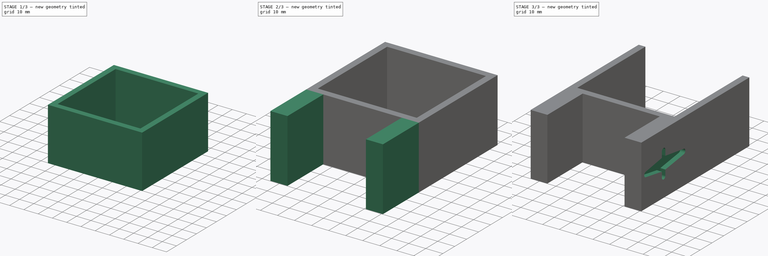
[diagram: build sequence overview — one tinted view per stage of 3, left to right]
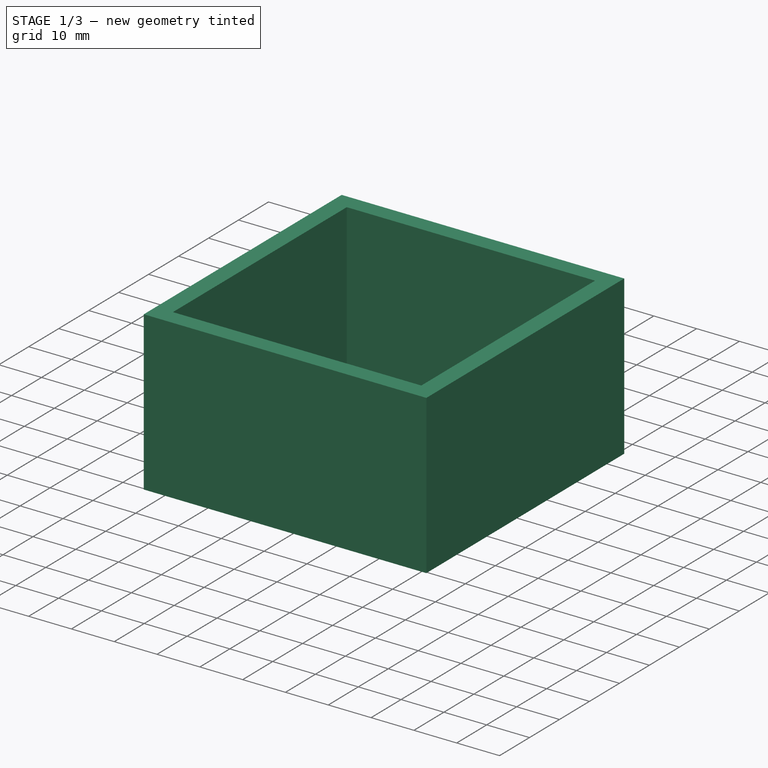
[diagram: stage 1 of 3 — iso view after this stage's code; geometry added in this stage tinted green]
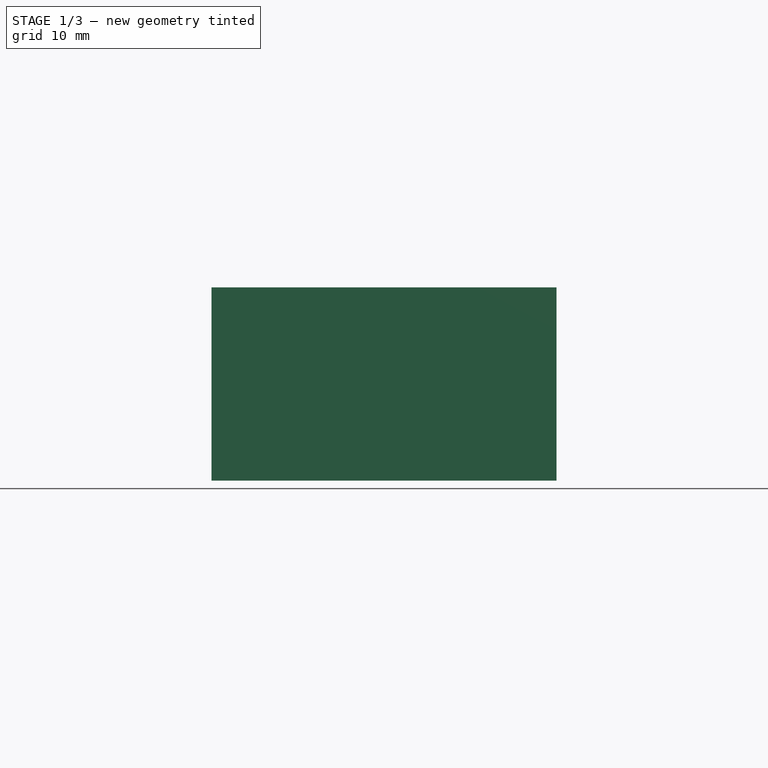
[diagram: stage 1 of 3 — front view after this stage's code; geometry added in this stage tinted green]
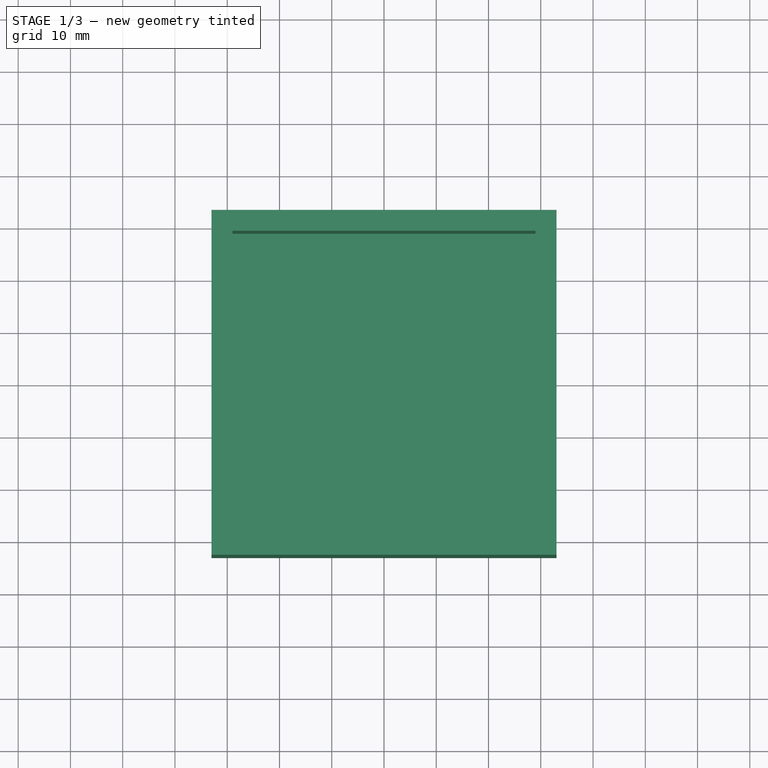
[diagram: stage 1 of 3 — top view after this stage's code; geometry added in this stage tinted green]
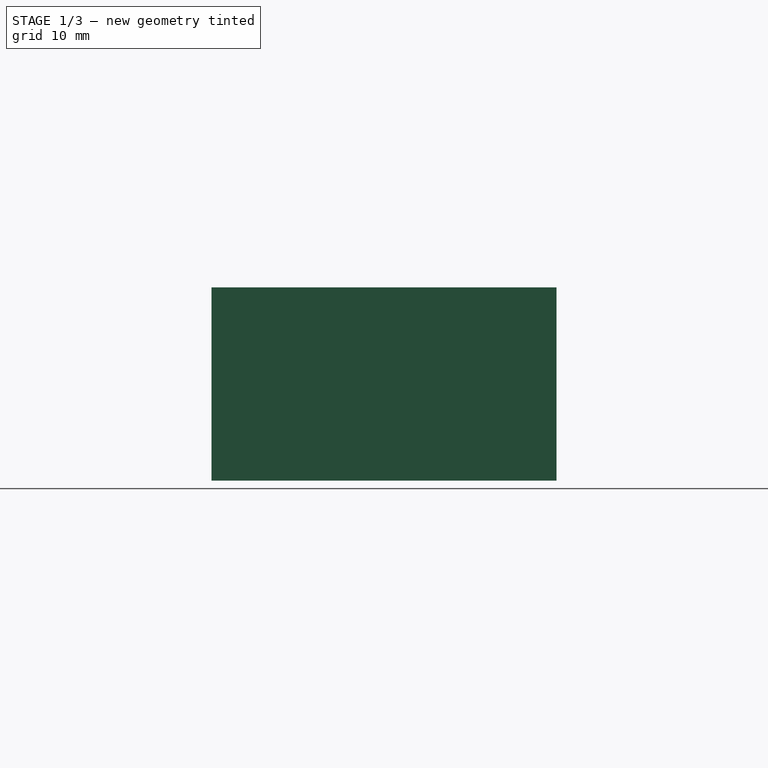
[diagram: stage 1 of 3 — right view after this stage's code; geometry added in this stage tinted green]
FCSTD DOCUMENT  (FreeCAD 0.16R6706 (Git))
Label: Bloquejadora
License: All rights reserved
LicenseURL: http://en.wikipedia.org/wiki/All_rights_reserved
objects: Sketcher::SketchObject×5, PartDesign::Pocket×3, PartDesign::Pad×2
note: 15 computed .brp shape members not serialized (recipe doc carries the construction recipe); baked Part::Feature solids carry a one-line shape summary decoded from their .brp

FEATURE [Sketcher::SketchObject] Sketch
  sketch-geometry (4):
    g0: LineSegment StartX=-33 StartY=33 StartZ=0 EndX=33 EndY=33 EndZ=0
    g1: LineSegment StartX=33 StartY=33 StartZ=0 EndX=33 EndY=-33 EndZ=0
    g2: LineSegment StartX=33 StartY=-33 StartZ=0 EndX=-33 EndY=-33 EndZ=0
    g3: LineSegment StartX=-33 StartY=-33 StartZ=0 EndX=-33 EndY=33 EndZ=0
  constraints (14):
    c: Coincident(g0,g1)
    c: Coincident(g1,g2)
    c: Coincident(g2,g3)
    c: Coincident(g3,g0)
    c: Horizontal(g0)
    c: Horizontal(g2)
    c: Vertical(g1)
    c: Vertical(g3)
    c: Equal(g2,g3)
    c: Equal(g3,g0)
    c: Equal(g0,g1)
    c: DistanceX(g0,g0) = 66
    c: Symmetric(g1,g0,g-1)
    c: Symmetric(g2,g1,g-2)
FEATURE [PartDesign::Pad] Pad
  Length = 37
  Length2 = 100
  Sketch = -> Sketch
  Type = 0
FEATURE [Sketcher::SketchObject] Sketch001
  Placement = pos=(0,0,37) rot=(0,0,1;0rad)
  Support = -> Pad [Face6]
  sketch-geometry (4):
    g0: LineSegment StartX=-29 StartY=29 StartZ=0 EndX=29 EndY=29 EndZ=0
    g1: LineSegment StartX=29 StartY=29 StartZ=0 EndX=29 EndY=-29 EndZ=0
    g2: LineSegment StartX=29 StartY=-29 StartZ=0 EndX=-29 EndY=-29 EndZ=0
    g3: LineSegment StartX=-29 StartY=-29 StartZ=0 EndX=-29 EndY=29 EndZ=0
  constraints (14):
    c: Coincident(g0,g1)
    c: Coincident(g1,g2)
    c: Coincident(g2,g3)
    c: Coincident(g3,g0)
    c: Horizontal(g0)
    c: Horizontal(g2)
    c: Vertical(g1)
    c: Vertical(g3)
    c: Equal(g1,g2)
    c: Equal(g2,g3)
    c: Equal(g3,g0)
    c: Symmetric(g0,g2,g-1)
    c: Symmetric(g0,g0,g-2)
    c: DistanceX(g0,g0) = 58
FEATURE [PartDesign::Pocket] Pocket
  Length = 33
  Sketch = -> Sketch001
  Type = 0
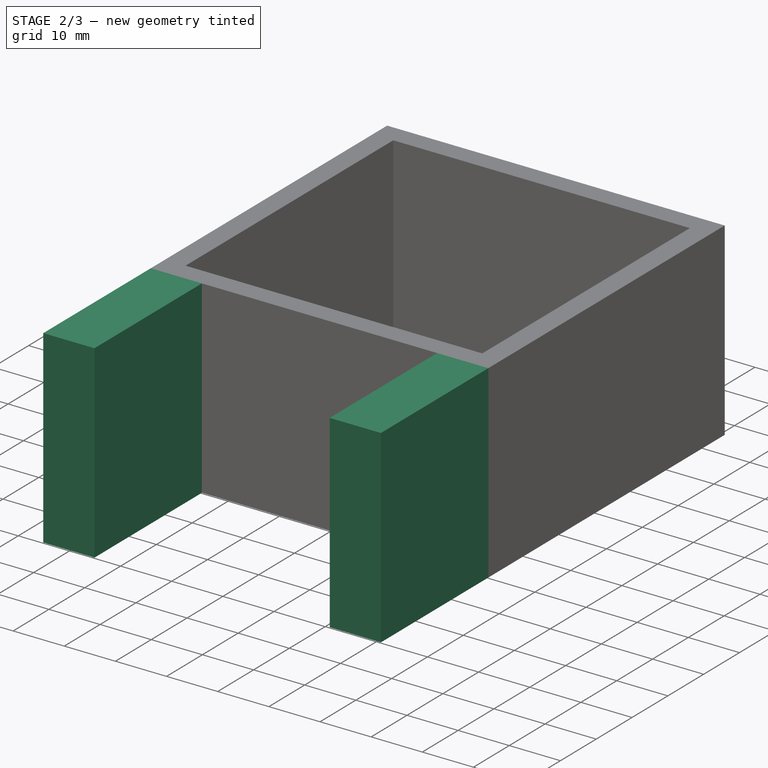
[diagram: stage 2 of 3 — iso view after this stage's code; geometry added in this stage tinted green]
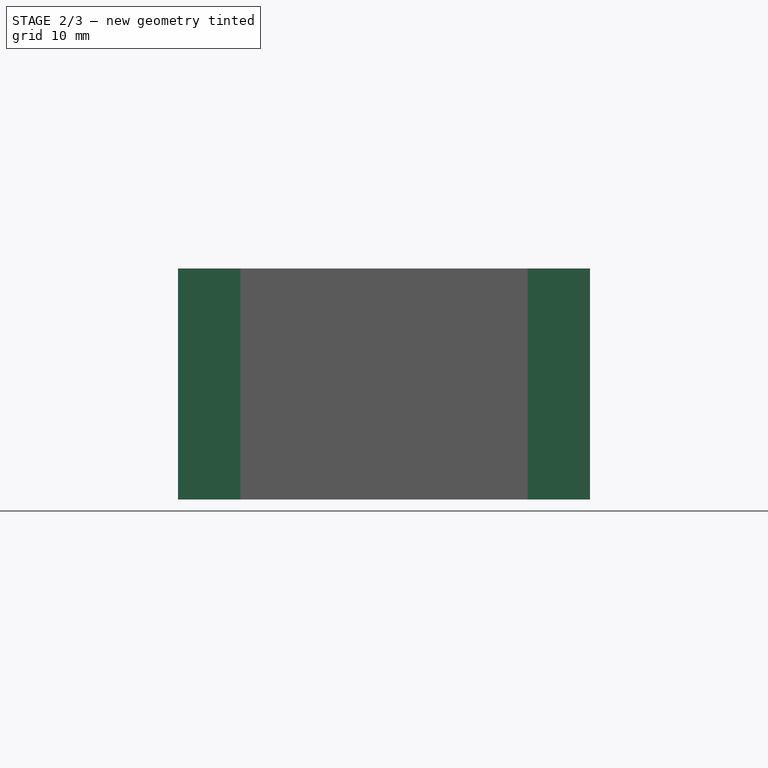
[diagram: stage 2 of 3 — front view after this stage's code; geometry added in this stage tinted green]
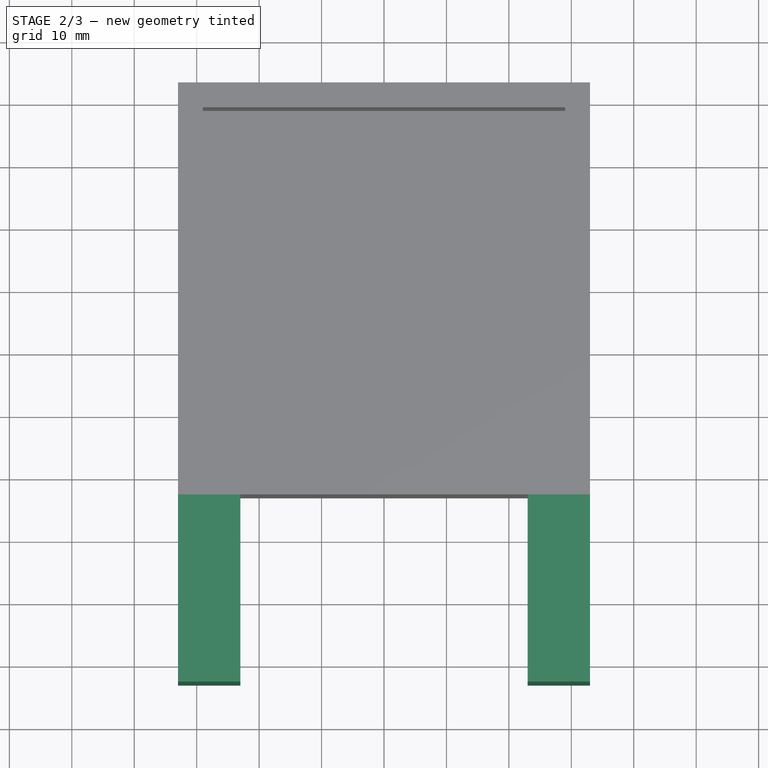
[diagram: stage 2 of 3 — top view after this stage's code; geometry added in this stage tinted green]
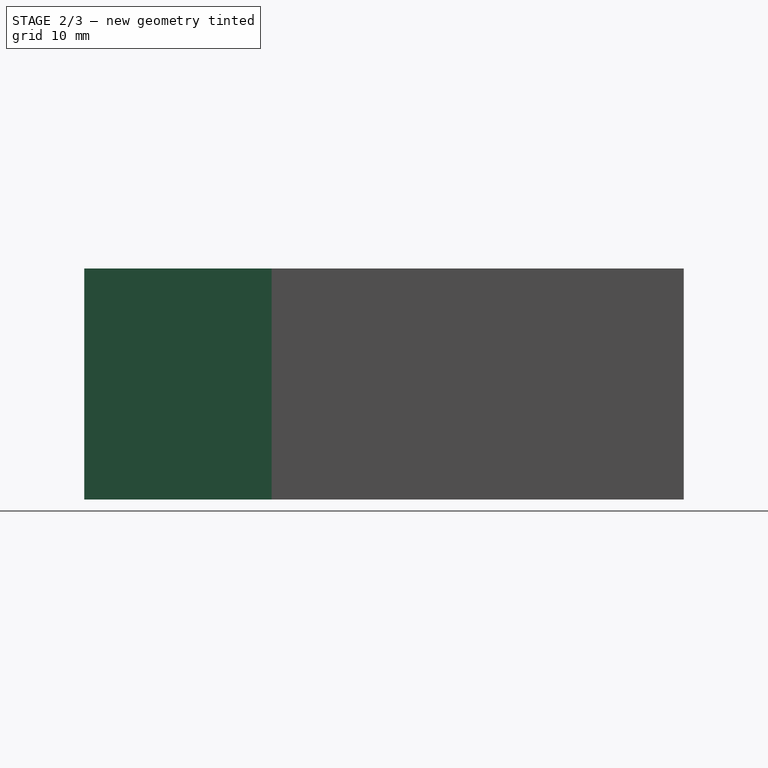
[diagram: stage 2 of 3 — right view after this stage's code; geometry added in this stage tinted green]
FEATURE [Sketcher::SketchObject] Sketch002
  ExternalGeometry = -> [Pocket]
  Placement = pos=(0,-33,0) rot=(1,0,0;1.5708rad)
  Support = -> Pocket [Face6]
  sketch-geometry (8):
    g0: LineSegment StartX=-33 StartY=37 StartZ=0 EndX=-23 EndY=37 EndZ=0
    g1: LineSegment StartX=-23 StartY=37 StartZ=0 EndX=-23 EndY=0 EndZ=0
    g2: LineSegment StartX=-23 StartY=0 StartZ=0 EndX=-33 EndY=0 EndZ=0
    g3: LineSegment StartX=-33 StartY=0 StartZ=0 EndX=-33 EndY=37 EndZ=0
    g4: LineSegment StartX=23 StartY=37 StartZ=0 EndX=33 EndY=37 EndZ=0
    g5: LineSegment StartX=33 StartY=37 StartZ=0 EndX=33 EndY=0 EndZ=0
    g6: LineSegment StartX=33 StartY=0 StartZ=0 EndX=23 EndY=0 EndZ=0
    g7: LineSegment StartX=23 StartY=0 StartZ=0 EndX=23 EndY=37 EndZ=0
  constraints (20):
    c: Coincident(g0,g1)
    c: Coincident(g1,g2)
    c: Coincident(g2,g3)
    c: Coincident(g3,g0)
    c: Horizontal(g0)
    c: Horizontal(g2)
    c: Vertical(g1)
    c: Vertical(g3)
    c: Coincident(g4,g5)
    c: Coincident(g5,g6)
    c: Coincident(g6,g7)
    c: Coincident(g7,g4)
    c: Horizontal(g4)
    c: Horizontal(g6)
    c: Vertical(g5)
    c: Vertical(g7)
    c: Coincident(g0,g-4)
    c: Coincident(g2,g-6)
    c: Coincident(g5,g-6)
    c: Coincident(g4,g-5)
FEATURE [PartDesign::Pad] Pad001
  Length = 30
  Length2 = 100
  Sketch = -> Sketch002
  Type = 0
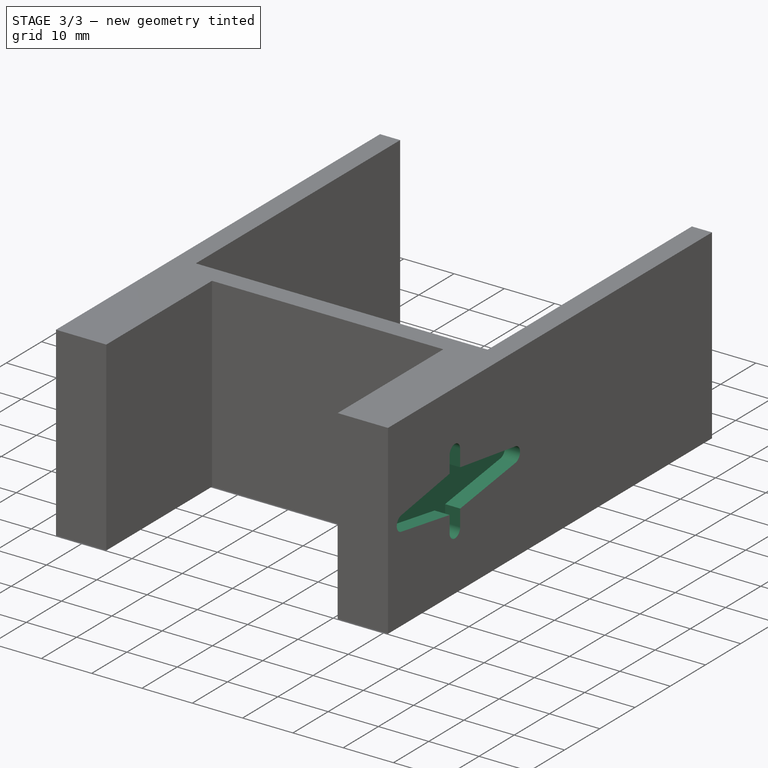
[diagram: stage 3 of 3 — iso view after this stage's code; geometry added in this stage tinted green]
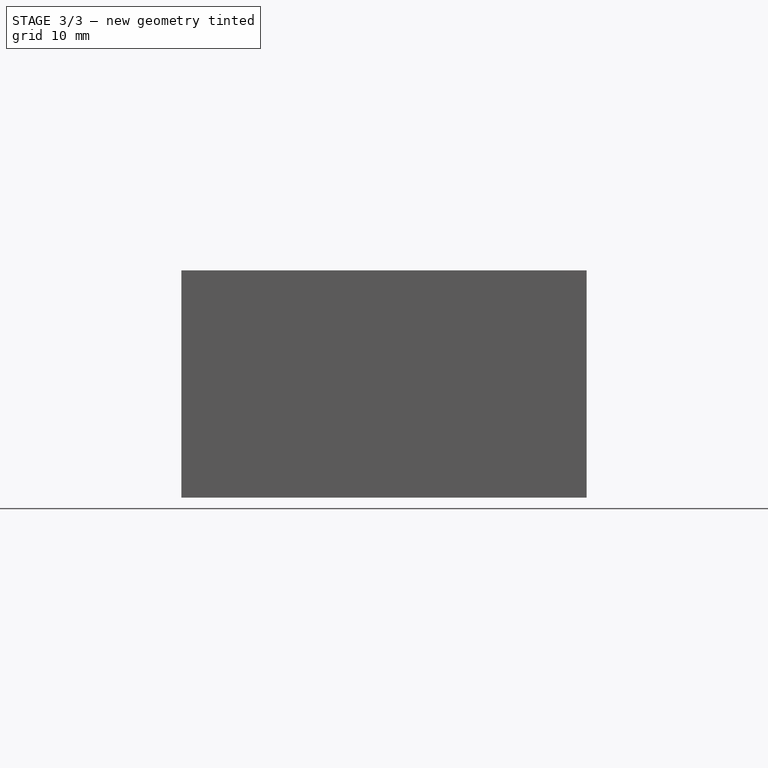
[diagram: stage 3 of 3 — front view after this stage's code; geometry added in this stage tinted green]
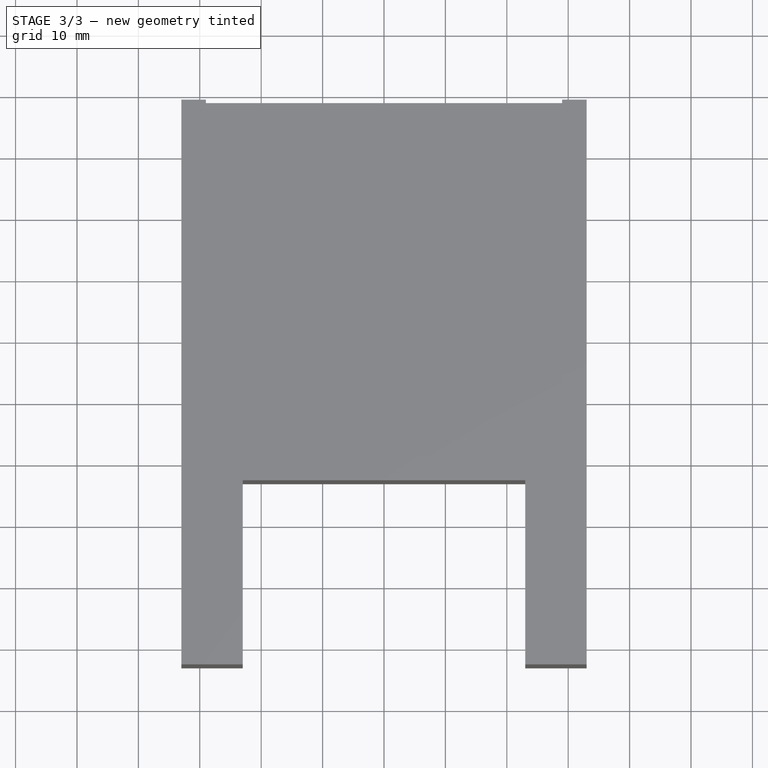
[diagram: stage 3 of 3 — top view after this stage's code; geometry added in this stage tinted green]
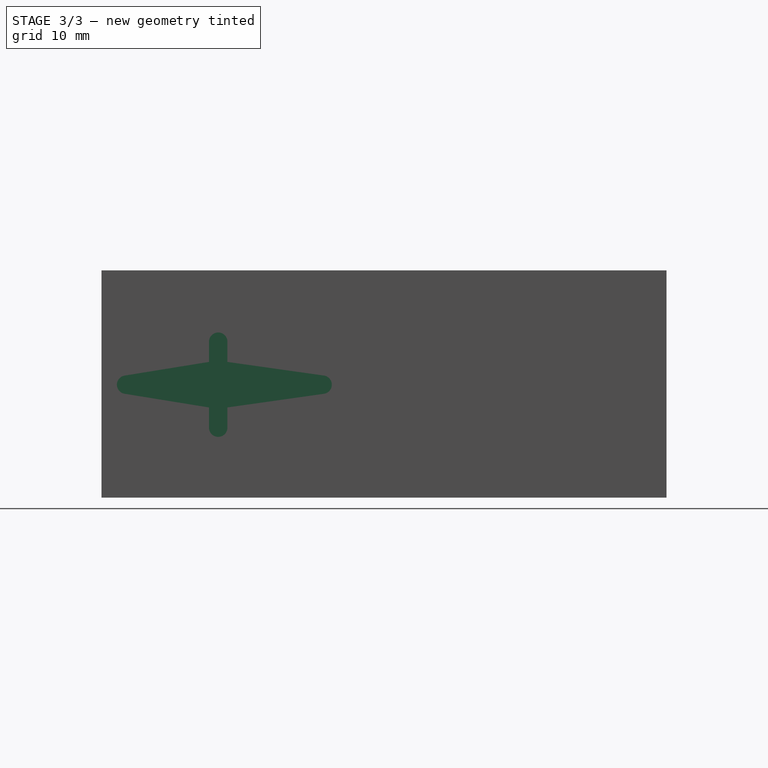
[diagram: stage 3 of 3 — right view after this stage's code; geometry added in this stage tinted green]
FEATURE [Sketcher::SketchObject] Sketch003
  ExternalGeometry = -> [Pad001]
  Placement = pos=(0,33,0) rot=(0,0.707107,0.707107;3.14159rad)
  Support = -> Pad001 [Face1]
  sketch-geometry (4):
    g0: LineSegment StartX=-33 StartY=37 StartZ=0 EndX=33 EndY=37 EndZ=0
    g1: LineSegment StartX=33 StartY=37 StartZ=0 EndX=33 EndY=0 EndZ=0
    g2: LineSegment StartX=33 StartY=0 StartZ=0 EndX=-33 EndY=0 EndZ=0
    g3: LineSegment StartX=-33 StartY=0 StartZ=0 EndX=-33 EndY=37 EndZ=0
  constraints (10):
    c: Coincident(g0,g1)
    c: Coincident(g1,g2)
    c: Coincident(g2,g3)
    c: Coincident(g3,g0)
    c: Horizontal(g0)
    c: Horizontal(g2)
    c: Vertical(g1)
    c: Vertical(g3)
    c: Coincident(g0,g-5)
    c: Coincident(g1,g-6)
FEATURE [PartDesign::Pocket] Pocket001
  Length = 4
  Sketch = -> Sketch003
  Type = 0
FEATURE [Sketcher::SketchObject] Sketch005
  ExternalGeometry = -> [Pocket001]
  Placement = pos=(33,0,0) rot=(0.57735,0.57735,0.57735;2.0944rad)
  Support = -> Pocket001 [Face12]
  sketch-geometry (12):
    g0: LineSegment StartX=-45.5 StartY=22.0977 StartZ=0 EndX=-45.5 EndY=25.3896 EndZ=0
    g1: LineSegment StartX=-42.5 StartY=25.3896 StartZ=0 EndX=-42.5 EndY=22.0977 EndZ=0
    g2: LineSegment StartX=-42.5 StartY=22.0977 StartZ=0 EndX=-26.7899 EndY=19.8748 EndZ=0
    g3: LineSegment StartX=-26.7899 StartY=16.9044 StartZ=0 EndX=-42.5 EndY=14.6815 EndZ=0
    g4: LineSegment StartX=-42.5 StartY=14.6815 StartZ=0 EndX=-42.5 EndY=11.3896 EndZ=0
    g5: LineSegment StartX=-45.5 StartY=11.3896 StartZ=0 EndX=-45.5 EndY=14.6815 EndZ=0
    g6: LineSegment StartX=-45.5 StartY=14.6815 StartZ=0 EndX=-59.24 EndY=16.909 EndZ=0
    g7: LineSegment StartX=-59.24 StartY=19.8703 StartZ=0 EndX=-45.5 EndY=22.0977 EndZ=0
    g8: ArcOfCircle CenterX=-44 CenterY=25.3896 CenterZ=0 NormalX=0 NormalY=0 NormalZ=1 Radius=1.5 StartAngle=0 EndAngle=3.14159
    g9: ArcOfCircle CenterX=-27 CenterY=18.3896 CenterZ=0 NormalX=0 NormalY=0 NormalZ=1 Radius=1.5 StartAngle=4.85295 EndAngle=7.71342
    g10: ArcOfCircle CenterX=-44 CenterY=11.3896 CenterZ=0 NormalX=0 NormalY=0 NormalZ=1 Radius=1.5 StartAngle=3.14159 EndAngle=6.28319
    g11: ArcOfCircle CenterX=-59 CenterY=18.3896 CenterZ=0 NormalX=0 NormalY=0 NormalZ=1 Radius=1.5 StartAngle=1.73151 EndAngle=4.55167
  constraints (21):
    c: Coincident(g1,g2)
    c: Coincident(g7,g0)
    c: Tangent(g0,g8) = 1.5708
    c: Tangent(g1,g8) = 1.5708
    c: Tangent(g2,g9) = 1.5708
    c: Tangent(g3,g9) = 1.5708
    c: Tangent(g4,g10) = 1.5708
    c: Tangent(g5,g10) = 1.5708
    c: Tangent(g6,g11) = 1.5708
    c: Tangent(g7,g11) = 1.5708
    c: Equal(g11,g8)
    c: Equal(g8,g9)
    c: Equal(g9,g10)
    c: Vertical(g0)
    c: Vertical(g1)
    c: Vertical(g4)
    c: Vertical(g5)
    c: DistanceX(g11,g9) = 32
    c: DistanceY(g8,g10) = -14
    c: Coincident(g3,g4)
    c: Coincident(g6,g5)
FEATURE [PartDesign::Pocket] Pocket002
  Length = 3
  Sketch = -> Sketch005
  Type = 0
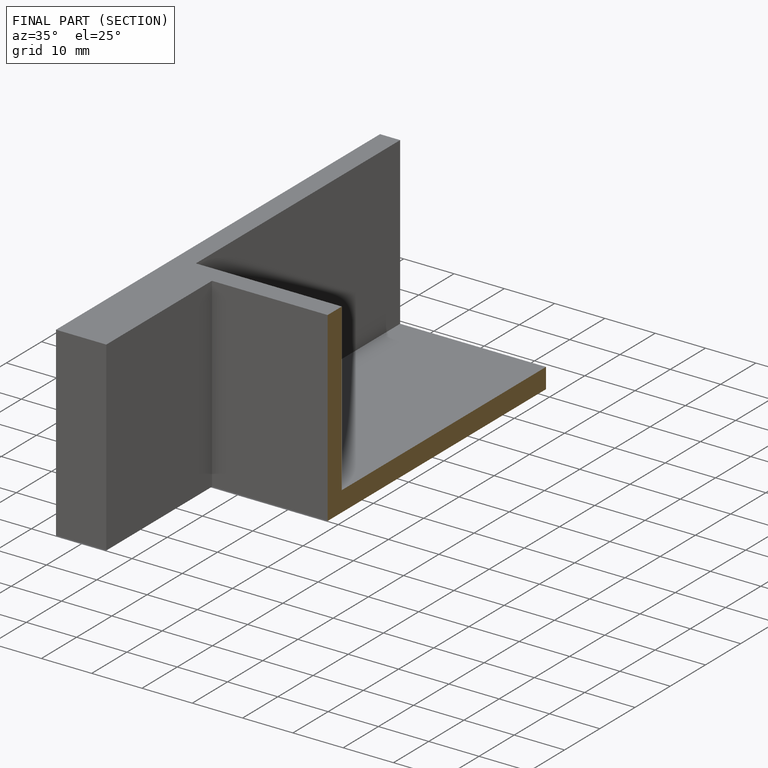
[diagram: finished part — half-section view (interior)]
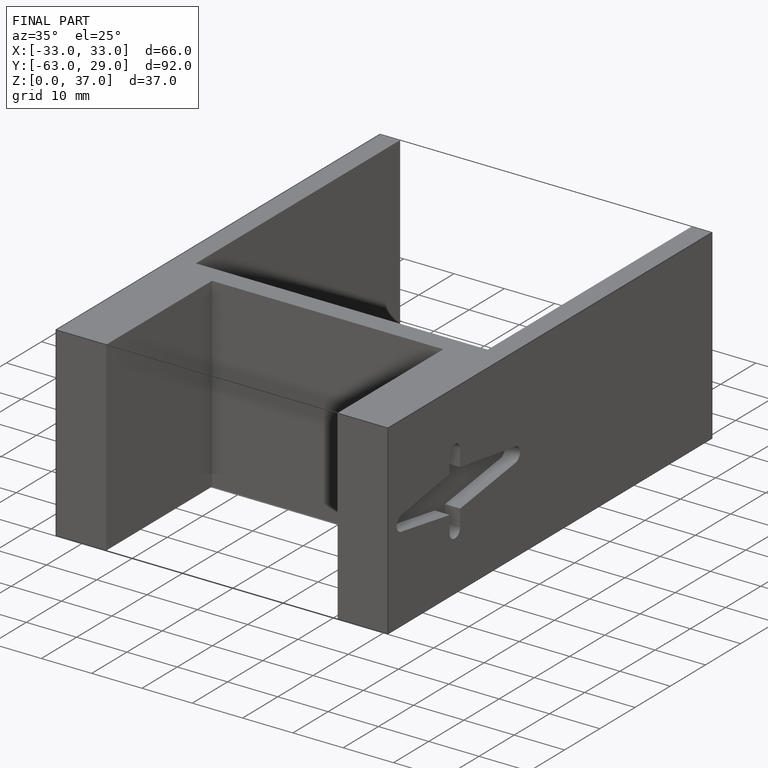
[diagram: finished part — iso view with bounding-box wireframe]
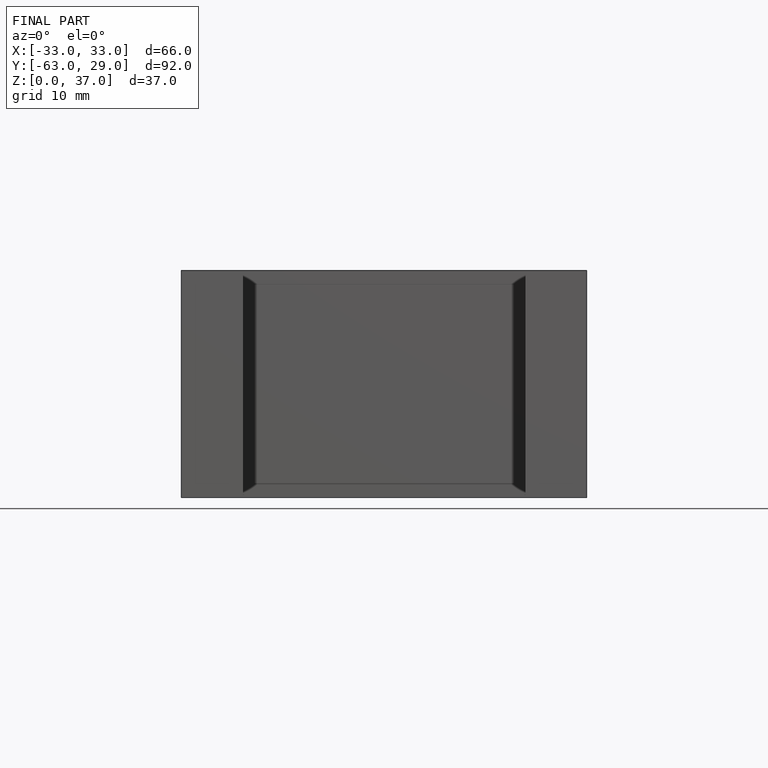
[diagram: finished part — front view with bounding-box wireframe]
